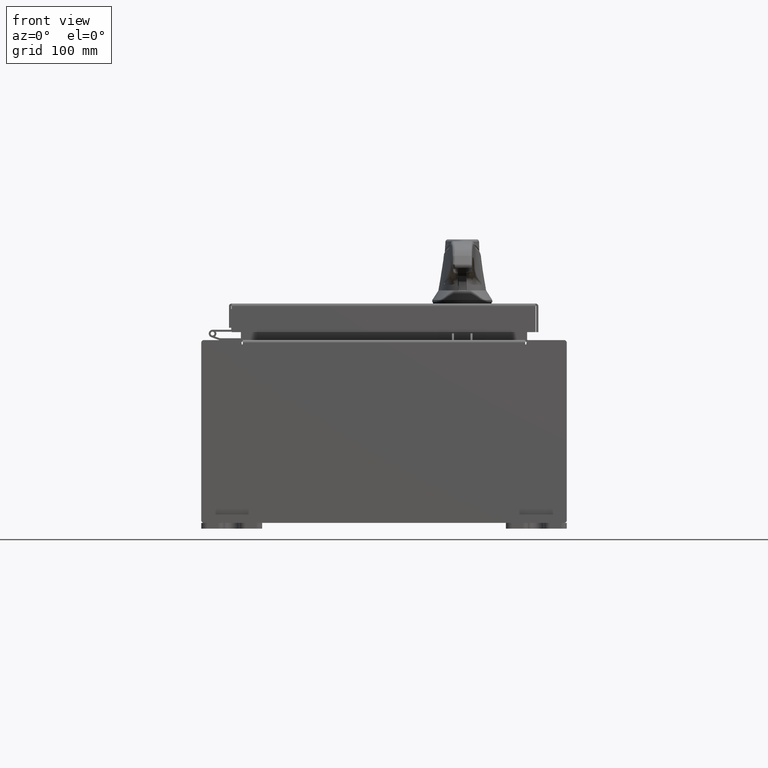
[diagram: clean part render]
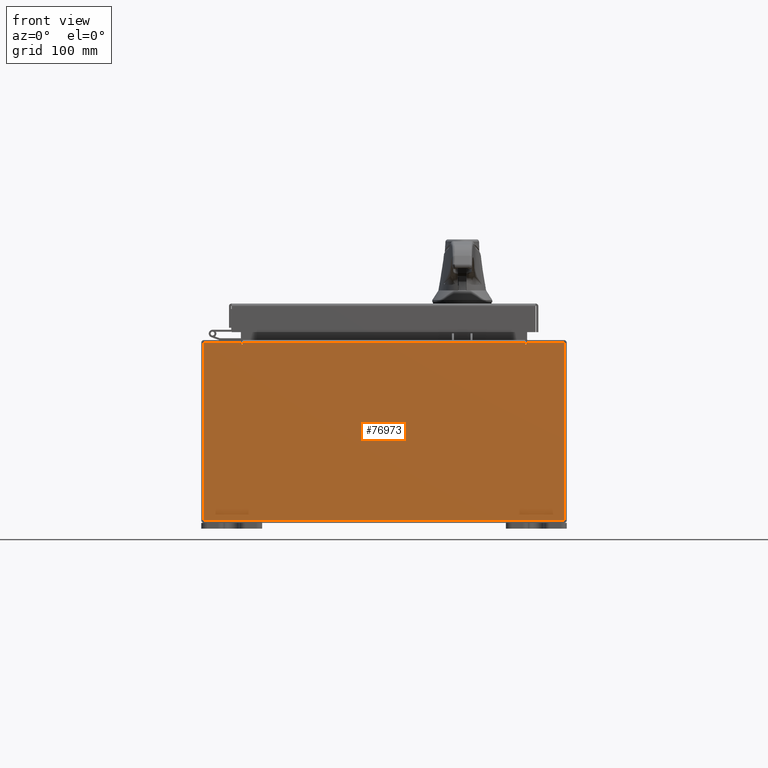
[diagram: same view with one face highlighted and labeled with its STEP entity id]
A machine part, front view. The second image highlights one B-rep face of the part: STEP entity #76973.
In plain terms, the highlighted planar face has unit normal (-0, 1, -0).
Its self-contained STEP definition (entity closure, byte-faithful):
#830 = ORIENTED_EDGE ( 'NONE', *, *, #67177, .F. ) ;
#2359 = EDGE_CURVE ( 'NONE', #48818, #88547, #13233, .T. ) ;
#2472 = LINE ( 'NONE', #94543, #87958 ) ;
#3240 = CARTESIAN_POINT ( 'NONE',  ( 5.925300000000001800, 0.0000000000000000000, 2.925300000000000000 ) ) ;
#5151 = DIRECTION ( 'NONE',  ( -0.0000000000000000000, 1.000000000000000000, -0.0000000000000000000 ) ) ;
#7407 = FACE_OUTER_BOUND ( 'NONE', #38678, .T. ) ;
#10463 = VERTEX_POINT ( 'NONE', #93191 ) ;
#10552 = ORIENTED_EDGE ( 'NONE', *, *, #47824, .F. ) ;
#11328 = CARTESIAN_POINT ( 'NONE',  ( -5.925299999999999100, 0.0000000000000000000, -2.925300000000000000 ) ) ;
#13231 = CARTESIAN_POINT ( 'NONE',  ( 4.674550000000001800, 0.0000000000000000000, 2.874949999999999700 ) ) ;
#13233 = LINE ( 'NONE', #3240, #21026 ) ;
#16020 = VERTEX_POINT ( 'NONE', #74586 ) ;
#16124 = ORIENTED_EDGE ( 'NONE', *, *, #25022, .F. ) ;
#17630 = DIRECTION ( 'NONE',  ( 1.000000000000000000, 0.0000000000000000000, 0.0000000000000000000 ) ) ;
#18594 = ORIENTED_EDGE ( 'NONE', *, *, #2359, .T. ) ;
#19367 = CARTESIAN_POINT ( 'NONE',  ( -4.655874999999999100, 0.0000000000000000000, 2.874949999999999700 ) ) ;
#19890 = AXIS2_PLACEMENT_3D ( 'NONE', #54697, #5151, #63053 ) ;
#21026 = VECTOR ( 'NONE', #50044, 39.37007874015748100 ) ;
#23595 = LINE ( 'NONE', #40702, #45598 ) ;
#25022 = EDGE_CURVE ( 'NONE', #98401, #26347, #25755, .T. ) ;
#25755 = LINE ( 'NONE', #56628, #67178 ) ;
#26347 = VERTEX_POINT ( 'NONE', #70013 ) ;
#27221 = EDGE_CURVE ( 'NONE', #80874, #16020, #29447, .T. ) ;
#27652 = DIRECTION ( 'NONE',  ( 0.0000000000000000000, 0.0000000000000000000, -1.000000000000000000 ) ) ;
#29447 = LINE ( 'NONE', #83542, #70883 ) ;
#30402 = ORIENTED_EDGE ( 'NONE', *, *, #58639, .F. ) ;
#30631 = VECTOR ( 'NONE', #83978, 39.37007874015748100 ) ;
#31110 = CARTESIAN_POINT ( 'NONE',  ( -5.925299999999999100, 0.0000000000000000000, 2.925300000000000000 ) ) ;
#31405 = ORIENTED_EDGE ( 'NONE', *, *, #27221, .T. ) ;
#33936 = CARTESIAN_POINT ( 'NONE',  ( 5.925300000000001800, 0.0000000000000000000, 2.925300000000000000 ) ) ;
#34244 = CARTESIAN_POINT ( 'NONE',  ( -5.925299999999999100, 0.0000000000000000000, 2.925300000000000000 ) ) ;
#34667 = VECTOR ( 'NONE', #17630, 39.37007874015748100 ) ;
#35547 = DIRECTION ( 'NONE',  ( -1.000000000000000000, -0.0000000000000000000, -0.0000000000000000000 ) ) ;
#36522 = ORIENTED_EDGE ( 'NONE', *, *, #105172, .F. ) ;
#36630 = DIRECTION ( 'NONE',  ( 0.0000000000000000000, 0.0000000000000000000, 1.000000000000000000 ) ) ;
#36651 = VERTEX_POINT ( 'NONE', #13231 ) ;
#37460 = EDGE_CURVE ( 'NONE', #58710, #26347, #52620, .T. ) ;
#38678 = EDGE_LOOP ( 'NONE', ( #16124, #36522, #830, #31405, #69907, #30402, #10552, #71474, #18594, #100221, #80498, #106409 ) ) ;
#39835 = VECTOR ( 'NONE', #51202, 39.37007874015748100 ) ;
#40702 = CARTESIAN_POINT ( 'NONE',  ( 4.674549999999970700, -0.0000000000000000000, -5.072556122654679100E-014 ) ) ;
#41158 = CIRCLE ( 'NONE', #51888, 0.01867500000000003900 ) ;
#41902 = AXIS2_PLACEMENT_3D ( 'NONE', #47845, #106151, #56522 ) ;
#42832 = CARTESIAN_POINT ( 'NONE',  ( -4.637199999999999100, -0.0000000000000000000, 0.0000000000000000000 ) ) ;
#43378 = VERTEX_POINT ( 'NONE', #78702 ) ;
#45598 = VECTOR ( 'NONE', #106971, 39.37007874015748100 ) ;
#45632 = VECTOR ( 'NONE', #89036, 39.37007874015748100 ) ;
#47824 = EDGE_CURVE ( 'NONE', #72645, #36651, #23595, .T. ) ;
#47845 = CARTESIAN_POINT ( 'NONE',  ( 0.0000000000000000000, 0.0000000000000000000, 0.0000000000000000000 ) ) ;
#48818 = VERTEX_POINT ( 'NONE', #33936 ) ;
#49048 = CARTESIAN_POINT ( 'NONE',  ( -4.674549999999999100, 0.0000000000000000000, 2.874949999999999700 ) ) ;
#49606 = CARTESIAN_POINT ( 'NONE',  ( 4.674550000000000900, 0.0000000000000000000, 2.925300000000000000 ) ) ;
#50044 = DIRECTION ( 'NONE',  ( 0.0000000000000000000, 0.0000000000000000000, -1.000000000000000000 ) ) ;
#51202 = DIRECTION ( 'NONE',  ( 0.0000000000000000000, 0.0000000000000000000, -1.000000000000000000 ) ) ;
#51668 = LINE ( 'NONE', #11328, #68522 ) ;
#51888 = AXIS2_PLACEMENT_3D ( 'NONE', #19367, #77248, #27652 ) ;
#52620 = LINE ( 'NONE', #59003, #30631 ) ;
#54022 = CARTESIAN_POINT ( 'NONE',  ( -4.637199999999999100, -1.707404996040164500E-016, 2.912300000000000100 ) ) ;
#54697 = CARTESIAN_POINT ( 'NONE',  ( 4.655875000000001800, 0.0000000000000000000, 2.874949999999999700 ) ) ;
#56522 = DIRECTION ( 'NONE',  ( 0.0000000000000000000, -0.0000000000000000000, -1.000000000000000000 ) ) ;
#56628 = CARTESIAN_POINT ( 'NONE',  ( -4.674549999999999100, -0.0000000000000000000, 0.0000000000000000000 ) ) ;
#57690 = CARTESIAN_POINT ( 'NONE',  ( 5.925300000000001800, 0.0000000000000000000, -2.925300000000000000 ) ) ;
#58639 = EDGE_CURVE ( 'NONE', #36651, #77931, #58690, .T. ) ;
#58690 = CIRCLE ( 'NONE', #19890, 0.01867500000000003900 ) ;
#58710 = VERTEX_POINT ( 'NONE', #104710 ) ;
#59003 = CARTESIAN_POINT ( 'NONE',  ( -5.925299999999999100, 0.0000000000000000000, 2.925300000000000000 ) ) ;
#60091 = EDGE_CURVE ( 'NONE', #43378, #58710, #84477, .T. ) ;
#63053 = DIRECTION ( 'NONE',  ( 0.0000000000000000000, 0.0000000000000000000, -1.000000000000000000 ) ) ;
#64463 = LINE ( 'NONE', #42832, #39835 ) ;
#67177 = EDGE_CURVE ( 'NONE', #80874, #10463, #64463, .T. ) ;
#67178 = VECTOR ( 'NONE', #90633, 39.37007874015748100 ) ;
#68522 = VECTOR ( 'NONE', #35547, 39.37007874015748100 ) ;
#69907 = ORIENTED_EDGE ( 'NONE', *, *, #104264, .F. ) ;
#70013 = CARTESIAN_POINT ( 'NONE',  ( -4.674549999999999100, 0.0000000000000000000, 2.925300000000000000 ) ) ;
#70883 = VECTOR ( 'NONE', #91825, 39.37007874015748100 ) ;
#71474 = ORIENTED_EDGE ( 'NONE', *, *, #94152, .T. ) ;
#72645 = VERTEX_POINT ( 'NONE', #49606 ) ;
#74586 = CARTESIAN_POINT ( 'NONE',  ( 4.637200000000001800, 0.0000000000000000000, 2.912300000000000100 ) ) ;
#76973 = ADVANCED_FACE ( 'NONE', ( #7407 ), #89467, .F. ) ;
#77248 = DIRECTION ( 'NONE',  ( -0.0000000000000000000, 1.000000000000000000, -0.0000000000000000000 ) ) ;
#77931 = VERTEX_POINT ( 'NONE', #82480 ) ;
#78702 = CARTESIAN_POINT ( 'NONE',  ( -5.925299999999999100, 0.0000000000000000000, -2.925300000000000000 ) ) ;
#80498 = ORIENTED_EDGE ( 'NONE', *, *, #60091, .T. ) ;
#80874 = VERTEX_POINT ( 'NONE', #54022 ) ;
#82480 = CARTESIAN_POINT ( 'NONE',  ( 4.637200000000001800, 0.0000000000000000000, 2.874949999999999700 ) ) ;
#83542 = CARTESIAN_POINT ( 'NONE',  ( -4.637199999999999100, -1.707404996040164500E-016, 2.912300000000000100 ) ) ;
#83978 = DIRECTION ( 'NONE',  ( 1.000000000000000000, 0.0000000000000000000, 0.0000000000000000000 ) ) ;
#84477 = LINE ( 'NONE', #31110, #45632 ) ;
#87958 = VECTOR ( 'NONE', #36630, 39.37007874015748100 ) ;
#88547 = VERTEX_POINT ( 'NONE', #57690 ) ;
#89036 = DIRECTION ( 'NONE',  ( -0.0000000000000000000, -0.0000000000000000000, 1.000000000000000000 ) ) ;
#89467 = PLANE ( 'NONE',  #41902 ) ;
#90633 = DIRECTION ( 'NONE',  ( 0.0000000000000000000, 0.0000000000000000000, 1.000000000000000000 ) ) ;
#91825 = DIRECTION ( 'NONE',  ( 1.000000000000000000, 0.0000000000000000000, 0.0000000000000000000 ) ) ;
#93191 = CARTESIAN_POINT ( 'NONE',  ( -4.637199999999999100, -0.0000000000000000000, 2.874949999999999700 ) ) ;
#94152 = EDGE_CURVE ( 'NONE', #72645, #48818, #98138, .T. ) ;
#94543 = CARTESIAN_POINT ( 'NONE',  ( 4.637200000000001800, 0.0000000000000000000, 0.0000000000000000000 ) ) ;
#98138 = LINE ( 'NONE', #34244, #34667 ) ;
#98401 = VERTEX_POINT ( 'NONE', #49048 ) ;
#100221 = ORIENTED_EDGE ( 'NONE', *, *, #104224, .T. ) ;
#104224 = EDGE_CURVE ( 'NONE', #88547, #43378, #51668, .T. ) ;
#104264 = EDGE_CURVE ( 'NONE', #77931, #16020, #2472, .T. ) ;
#104710 = CARTESIAN_POINT ( 'NONE',  ( -5.925299999999999100, 0.0000000000000000000, 2.925300000000000000 ) ) ;
#105172 = EDGE_CURVE ( 'NONE', #10463, #98401, #41158, .T. ) ;
#106151 = DIRECTION ( 'NONE',  ( 0.0000000000000000000, -1.000000000000000000, 0.0000000000000000000 ) ) ;
#106409 = ORIENTED_EDGE ( 'NONE', *, *, #37460, .T. ) ;
#106971 = DIRECTION ( 'NONE',  ( -1.085143195100001200E-014, 0.0000000000000000000, -1.000000000000000000 ) ) ;